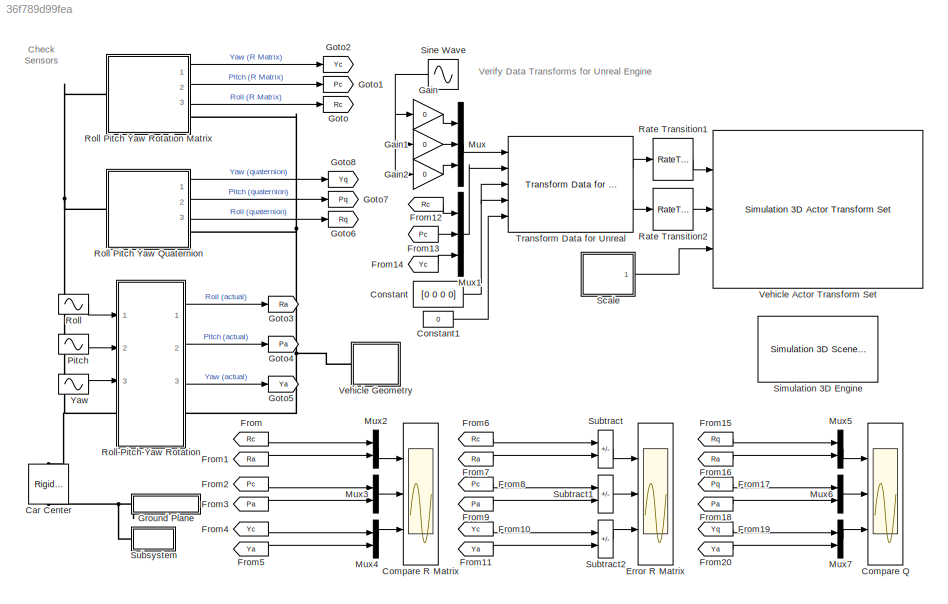
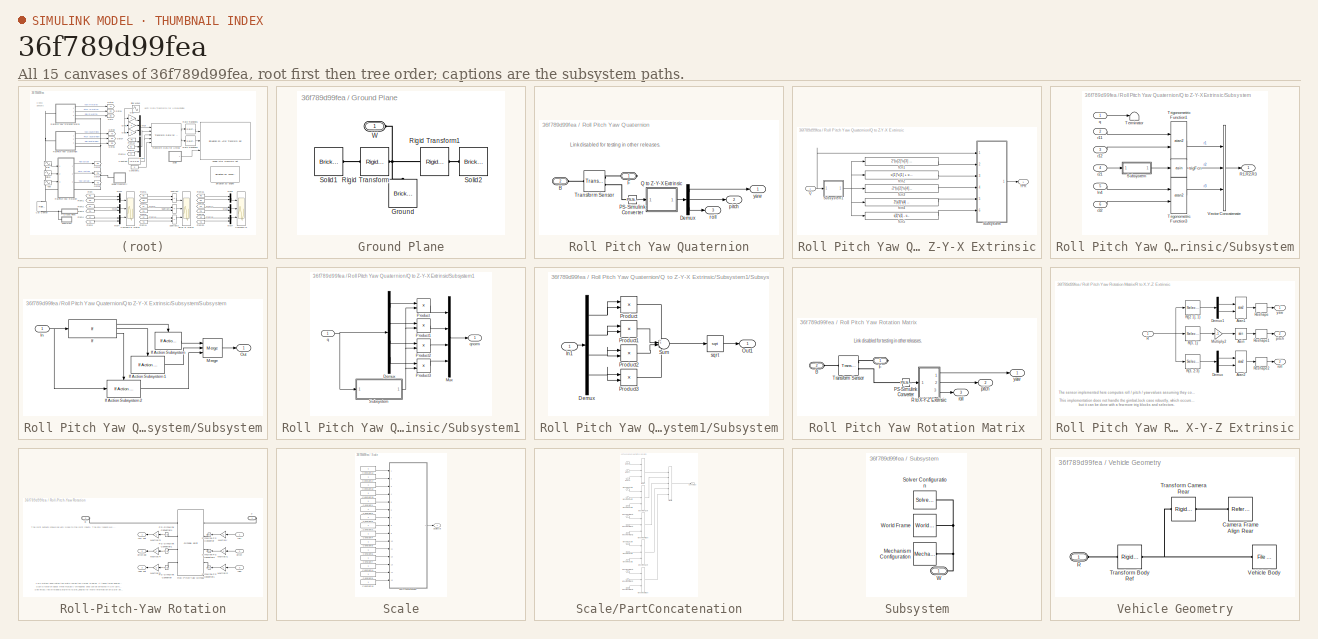
[diagram: thumbnail index - all 15 canvases of the model, root first then tree order]
MODEL slx_36f789d99fea
KIND model
CONFIG AbsTol = auto
CONFIG EnableMultiTasking = on
CONFIG FixedStep = auto
CONFIG MaxStep = auto
CONFIG MinStep = auto
CONFIG RelTol = 1e-3
CONFIG SampleTimeConstraint = Unconstrained
CONFIG SolverName = VariableStepAuto
CONFIG StartTime = 0.0
CONFIG StopTime = 20
BLOCK [Reference] Car Center  REF=sm_lib/Frames and
Transforms/Rigid
Transform
  NameLocation = right
  Ports = [0, 0, 0, 0, 0, 1, 1]
  SourceBlock = sm_lib/Frames and\nTransforms/Rigid\nTransform
  SourceProductName = Multibody
  SourceType = Rigid\nTransform
BLOCK [Scope] Compare Q
  Floating = off
  NumInputPorts = 3
  Ports = [3]
  ScopeSpecificationString = Simulink.scopes.TimeScopeBlockCfg('CurrentConfiguration', extmgr.ConfigurationSet(extmgr.Configuration('Core','General UI',true),extmgr.Configuration('Core','Source UI',true),extmgr.Configuration('Sources','WiredSimulink',true,'DataLoggingVariableName','ScopeData2'),extmgr.Configuration('Visuals','Time Domain',true,'SerializedDisplays',{struct('MinYLimReal','-3.27218','MaxYLimReal','3.27218','YLab...<+3367ch>
BLOCK [Scope] Compare R Matrix
  Floating = off
  NumInputPorts = 3
  Ports = [3]
  ScopeSpecificationString = Simulink.scopes.TimeScopeBlockCfg('CurrentConfiguration', extmgr.ConfigurationSet(extmgr.Configuration('Core','General UI',true),extmgr.Configuration('Core','Source UI',true),extmgr.Configuration('Sources','WiredSimulink',true,'DataLoggingVariableName','ScopeData1'),extmgr.Configuration('Visuals','Time Domain',true,'SerializedDisplays',{struct('MinYLimReal','-3.27218','MaxYLimReal','3.27218','YLab...<+3378ch>
BLOCK [Constant] Constant
  Value = [0 0 0 0]
BLOCK [Constant] Constant1
  Value = 0
BLOCK [Scope] Error R Matrix
  Floating = off
  NumInputPorts = 3
  Ports = [3]
  ScopeSpecificationString = Simulink.scopes.TimeScopeBlockCfg('CurrentConfiguration', extmgr.ConfigurationSet(extmgr.Configuration('Core','General UI',true),extmgr.Configuration('Core','Source UI',true),extmgr.Configuration('Sources','WiredSimulink',true,'DataLoggingVariableName','ScopeData1'),extmgr.Configuration('Visuals','Time Domain',true,'SerializedDisplays',{struct('MinYLimReal','-0.00000000000002','MaxYLimReal','0.000...<+2739ch>
BLOCK [From] From
  GotoTag = Rc
BLOCK [From] From1
  GotoTag = Ra
BLOCK [From] From10
  GotoTag = Yc
BLOCK [From] From11
  GotoTag = Ya
BLOCK [From] From12
  GotoTag = Rc
BLOCK [From] From13
  GotoTag = Pc
BLOCK [From] From14
  GotoTag = Yc
BLOCK [From] From15
  GotoTag = Rq
BLOCK [From] From16
  GotoTag = Ra
BLOCK [From] From17
  GotoTag = Pq
BLOCK [From] From18
  GotoTag = Pa
BLOCK [From] From19
  GotoTag = Yq
BLOCK [From] From2
  GotoTag = Pc
BLOCK [From] From20
  GotoTag = Ya
BLOCK [From] From3
  GotoTag = Pa
BLOCK [From] From4
  GotoTag = Yc
BLOCK [From] From5
  GotoTag = Ya
BLOCK [From] From6
  GotoTag = Rc
BLOCK [From] From7
  GotoTag = Ra
BLOCK [From] From8
  GotoTag = Pc
BLOCK [From] From9
  GotoTag = Pa
BLOCK [Gain] Gain
  Gain = 0
BLOCK [Gain] Gain1
  Gain = 0
BLOCK [Gain] Gain2
  Gain = 0
BLOCK [Goto] Goto
  GotoTag = Rc
BLOCK [Goto] Goto1
  GotoTag = Pc
BLOCK [Goto] Goto2
  GotoTag = Yc
BLOCK [Goto] Goto3
  GotoTag = Ra
BLOCK [Goto] Goto4
  GotoTag = Pa
BLOCK [Goto] Goto5
  GotoTag = Ya
BLOCK [Goto] Goto6
  GotoTag = Rq
BLOCK [Goto] Goto7
  GotoTag = Pq
BLOCK [Goto] Goto8
  GotoTag = Yq
BLOCK [SubSystem] Ground Plane
  Ports = [0, 0, 0, 0, 0, 1]
  RequestExecContextInheritance = off
BLOCK [Reference] Ground Plane/Ground  REF=sm_lib/Body Elements/Brick Solid
  NameLocation = left
  Ports = [0, 0, 0, 0, 0, 0, 1]
  SourceBlock = sm_lib/Body Elements/Brick Solid
  SourceProductBaseCode = MS
  SourceType = Brick Solid
BLOCK [Reference] Ground Plane/Rigid Transform  REF=sm_lib/Frames and
Transforms/Rigid
Transform
  Ports = [0, 0, 0, 0, 0, 1, 1]
  SourceBlock = sm_lib/Frames and\nTransforms/Rigid\nTransform
  SourceProductBaseCode = MS
  SourceType = Rigid\nTransform
BLOCK [Reference] Ground Plane/Rigid Transform1  REF=sm_lib/Frames and
Transforms/Rigid
Transform
  Ports = [0, 0, 0, 0, 0, 1, 1]
  SourceBlock = sm_lib/Frames and\nTransforms/Rigid\nTransform
  SourceProductBaseCode = MS
  SourceType = Rigid\nTransform
BLOCK [Reference] Ground Plane/Solid1  REF=sm_lib/Body Elements/Brick Solid
  NameLocation = top
  Ports = [0, 0, 0, 0, 0, 0, 1]
  SourceBlock = sm_lib/Body Elements/Brick Solid
  SourceProductBaseCode = MS
  SourceType = Brick Solid
BLOCK [Reference] Ground Plane/Solid2  REF=sm_lib/Body Elements/Brick Solid
  NameLocation = top
  Ports = [0, 0, 0, 0, 0, 0, 1]
  SourceBlock = sm_lib/Body Elements/Brick Solid
  SourceProductBaseCode = MS
  SourceType = Brick Solid
BLOCK [PMIOPort] Ground Plane/W
  Side = Left
BLOCK [Mux] Mux
  DisplayOption = bar
  Inputs = 3
  Ports = [3, 1]
BLOCK [Mux] Mux1
  DisplayOption = bar
  Inputs = 3
  Ports = [3, 1]
BLOCK [Mux] Mux2
  DisplayOption = bar
  Inputs = 2
  Ports = [2, 1]
BLOCK [Mux] Mux3
  DisplayOption = bar
  Inputs = 2
  Ports = [2, 1]
BLOCK [Mux] Mux4
  DisplayOption = bar
  Inputs = 2
  Ports = [2, 1]
BLOCK [Mux] Mux5
  DisplayOption = bar
  Inputs = 2
  Ports = [2, 1]
BLOCK [Mux] Mux6
  DisplayOption = bar
  Inputs = 2
  Ports = [2, 1]
BLOCK [Mux] Mux7
  DisplayOption = bar
  Inputs = 2
  Ports = [2, 1]
BLOCK [Sin] Pitch
  Amplitude = 80
  Frequency = 1.329
  Ports = [0, 1]
  SampleTime = 0
BLOCK [RateTransition] Rate Transition1
  Deterministic = off
  OutPortSampleTime = 0.03
BLOCK [RateTransition] Rate Transition2
  Deterministic = off
  OutPortSampleTime = 0.03
BLOCK [Sin] Roll
  Amplitude = 150
  Frequency = .991
  Ports = [0, 1]
  SampleTime = 0
BLOCK [SubSystem] Roll Pitch Yaw Quaternion
  Ports = [0, 3, 0, 0, 0, 1, 1]
  RequestExecContextInheritance = off
BLOCK [PMIOPort] Roll Pitch Yaw Quaternion/B
  Port = 2
  Side = Left
BLOCK [Demux] Roll Pitch Yaw Quaternion/Demux
  Outputs = 3
  Ports = [1, 3]
BLOCK [PMIOPort] Roll Pitch Yaw Quaternion/F
  Side = Right
BLOCK [Reference] Roll Pitch Yaw Quaternion/PS-Simulink Converter  REF=nesl_utility/PS-Simulink
Converter
  Ports = [0, 1, 0, 0, 0, 1]
  SourceBlock = nesl_utility/PS-Simulink\nConverter
  SourceProductBaseCode = SS,PW,VE
  SourceType = PS-Simulink\nConverter
BLOCK [SubSystem] Roll Pitch Yaw Quaternion/Q to Z-Y-X Extrinsic
  AncestorBlock = sm_car_lib/Utilities/Q to Z-Y-X\nExtrinsic
  Ports = [1, 1]
  RequestExecContextInheritance = off
BLOCK [Inport] Roll Pitch Yaw Quaternion/Q to Z-Y-X Extrinsic/Q
BLOCK [SubSystem] Roll Pitch Yaw Quaternion/Q to Z-Y-X Extrinsic/Subsystem
  Ports = [6, 1]
  RequestExecContextInheritance = off
BLOCK [Inport] Roll Pitch Yaw Quaternion/Q to Z-Y-X Extrinsic/Subsystem/In4
  Port = 5
BLOCK [Outport] Roll Pitch Yaw Quaternion/Q to Z-Y-X Extrinsic/Subsystem/R1,R2,R3
  VectorParamsAs1DForOutWhenUnconnected = off
BLOCK [SubSystem] Roll Pitch Yaw Quaternion/Q to Z-Y-X Extrinsic/Subsystem/Subsystem
  Ports = [1, 1]
  RequestExecContextInheritance = off
BLOCK [If] Roll Pitch Yaw Quaternion/Q to Z-Y-X Extrinsic/Subsystem/Subsystem/If
  ElseIfExpressions = u1 < -1
  IfExpression = u1 > 1
  Ports = [1, 3]
BLOCK [Reference] Roll Pitch Yaw Quaternion/Q to Z-Y-X Extrinsic/Subsystem/Subsystem/If Action Subsystem  REF=sharedtransformsys/Protect asincos input/If Action
Subsystem
  Ports = [0, 1, 0, 0, 0, 0, 0, 1]
  SourceBlock = sharedtransformsys/Protect asincos input/If Action\nSubsystem
  SourceProductBaseCode = AE,PW,DR,MT,VE
  SourceType = SubSystem
BLOCK [Reference] Roll Pitch Yaw Quaternion/Q to Z-Y-X Extrinsic/Subsystem/Subsystem/If Action Subsystem1  REF=sharedtransformsys/Protect asincos input/If Action
Subsystem1
  Ports = [0, 1, 0, 0, 0, 0, 0, 1]
  SourceBlock = sharedtransformsys/Protect asincos input/If Action\nSubsystem1
  SourceProductBaseCode = AE,PW,DR,MT,VE
  SourceType = SubSystem
BLOCK [Reference] Roll Pitch Yaw Quaternion/Q to Z-Y-X Extrinsic/Subsystem/Subsystem/If Action Subsystem2  REF=sharedtransformsys/Protect asincos input/If Action
Subsystem2
  Ports = [1, 1, 0, 0, 0, 0, 0, 1]
  SourceBlock = sharedtransformsys/Protect asincos input/If Action\nSubsystem2
  SourceProductBaseCode = AE,PW,DR,MT,VE
  SourceType = SubSystem
BLOCK [Inport] Roll Pitch Yaw Quaternion/Q to Z-Y-X Extrinsic/Subsystem/Subsystem/In
BLOCK [Merge] Roll Pitch Yaw Quaternion/Q to Z-Y-X Extrinsic/Subsystem/Subsystem/Merge
  Inputs = 3
  Ports = [3, 1]
BLOCK [Outport] Roll Pitch Yaw Quaternion/Q to Z-Y-X Extrinsic/Subsystem/Subsystem/Out
  VectorParamsAs1DForOutWhenUnconnected = off
BLOCK [Terminator] Roll Pitch Yaw Quaternion/Q to Z-Y-X Extrinsic/Subsystem/Terminator
BLOCK [Trigonometry] Roll Pitch Yaw Quaternion/Q to Z-Y-X Extrinsic/Subsystem/Trigonometric Function1
  Operator = atan2
  Ports = [2, 1]
BLOCK [Trigonometry] Roll Pitch Yaw Quaternion/Q to Z-Y-X Extrinsic/Subsystem/Trigonometric Function3
  Operator = atan2
  Ports = [2, 1]
BLOCK [Concatenate] Roll Pitch Yaw Quaternion/Q to Z-Y-X Extrinsic/Subsystem/Vector Concatenate
  NumInputs = 3
  Ports = [3, 1]
BLOCK [Inport] Roll Pitch Yaw Quaternion/Q to Z-Y-X Extrinsic/Subsystem/q
BLOCK [Inport] Roll Pitch Yaw Quaternion/Q to Z-Y-X Extrinsic/Subsystem/r11
  Port = 2
BLOCK [Inport] Roll Pitch Yaw Quaternion/Q to Z-Y-X Extrinsic/Subsystem/r12
  Port = 3
BLOCK [Inport] Roll Pitch Yaw Quaternion/Q to Z-Y-X Extrinsic/Subsystem/r21
  Port = 4
BLOCK [Inport] Roll Pitch Yaw Quaternion/Q to Z-Y-X Extrinsic/Subsystem/r32
  Port = 6
BLOCK [Trigonometry] Roll Pitch Yaw Quaternion/Q to Z-Y-X Extrinsic/Subsystem/trigFcn
  Operator = asin
  Ports = [1, 1]
BLOCK [SubSystem] Roll Pitch Yaw Quaternion/Q to Z-Y-X Extrinsic/Subsystem1
  Ports = [1, 1]
  RequestExecContextInheritance = off
BLOCK [Demux] Roll Pitch Yaw Quaternion/Q to Z-Y-X Extrinsic/Subsystem1/Demux
  Ports = [1, 4]
BLOCK [Mux] Roll Pitch Yaw Quaternion/Q to Z-Y-X Extrinsic/Subsystem1/Mux
  DisplayOption = bar
  Ports = [4, 1]
BLOCK [Product] Roll Pitch Yaw Quaternion/Q to Z-Y-X Extrinsic/Subsystem1/Product
  Inputs = */
  Ports = [2, 1]
BLOCK [Product] Roll Pitch Yaw Quaternion/Q to Z-Y-X Extrinsic/Subsystem1/Product1
  Inputs = */
  Ports = [2, 1]
BLOCK [Product] Roll Pitch Yaw Quaternion/Q to Z-Y-X Extrinsic/Subsystem1/Product2
  Inputs = */
  Ports = [2, 1]
BLOCK [Product] Roll Pitch Yaw Quaternion/Q to Z-Y-X Extrinsic/Subsystem1/Product3
  Inputs = */
  Ports = [2, 1]
BLOCK [SubSystem] Roll Pitch Yaw Quaternion/Q to Z-Y-X Extrinsic/Subsystem1/Subsystem
  Ports = [1, 1]
  RequestExecContextInheritance = off
BLOCK [Demux] Roll Pitch Yaw Quaternion/Q to Z-Y-X Extrinsic/Subsystem1/Subsystem/Demux
  Ports = [1, 4]
BLOCK [Inport] Roll Pitch Yaw Quaternion/Q to Z-Y-X Extrinsic/Subsystem1/Subsystem/In1
BLOCK [Outport] Roll Pitch Yaw Quaternion/Q to Z-Y-X Extrinsic/Subsystem1/Subsystem/Out1
  VectorParamsAs1DForOutWhenUnconnected = off
BLOCK [Product] Roll Pitch Yaw Quaternion/Q to Z-Y-X Extrinsic/Subsystem1/Subsystem/Product
  Ports = [2, 1]
BLOCK [Product] Roll Pitch Yaw Quaternion/Q to Z-Y-X Extrinsic/Subsystem1/Subsystem/Product1
  Ports = [2, 1]
BLOCK [Product] Roll Pitch Yaw Quaternion/Q to Z-Y-X Extrinsic/Subsystem1/Subsystem/Product2
  Ports = [2, 1]
BLOCK [Product] Roll Pitch Yaw Quaternion/Q to Z-Y-X Extrinsic/Subsystem1/Subsystem/Product3
  Ports = [2, 1]
BLOCK [Sum] Roll Pitch Yaw Quaternion/Q to Z-Y-X Extrinsic/Subsystem1/Subsystem/Sum
  Inputs = 4
  Ports = [4, 1]
BLOCK [Sqrt] Roll Pitch Yaw Quaternion/Q to Z-Y-X Extrinsic/Subsystem1/Subsystem/sqrt
  AlgorithmType = Newton-Raphson
BLOCK [Inport] Roll Pitch Yaw Quaternion/Q to Z-Y-X Extrinsic/Subsystem1/q
  Unit = 1
BLOCK [Outport] Roll Pitch Yaw Quaternion/Q to Z-Y-X Extrinsic/Subsystem1/qnorm
  Unit = 1
  VectorParamsAs1DForOutWhenUnconnected = off
BLOCK [Outport] Roll Pitch Yaw Quaternion/Q to Z-Y-X Extrinsic/YPR
  VectorParamsAs1DForOutWhenUnconnected = off
BLOCK [Fcn] Roll Pitch Yaw Quaternion/Q to Z-Y-X Extrinsic/fcn1
  Expr = 2*(u[2]*u[3] + u[1]*u[4])
BLOCK [Fcn] Roll Pitch Yaw Quaternion/Q to Z-Y-X Extrinsic/fcn2
  Expr = u[1]*u[1] + u[2]*u[2] - u[3]*u[3] - u[4]*u[4]
BLOCK [Fcn] Roll Pitch Yaw Quaternion/Q to Z-Y-X Extrinsic/fcn3
  Expr = -2*(u[2]*u[4] - u[1]*u[3])
BLOCK [Fcn] Roll Pitch Yaw Quaternion/Q to Z-Y-X Extrinsic/fcn4
  Expr = 2*(u[3]*u[4] + u[1]*u[2])
BLOCK [Fcn] Roll Pitch Yaw Quaternion/Q to Z-Y-X Extrinsic/fcn5
  Expr = u[1]*u[1] - u[2]*u[2] - u[3]*u[3] + u[4]*u[4]
BLOCK [Reference] Roll Pitch Yaw Quaternion/Transform Sensor  REF=sm_lib/Frames and
Transforms/Transform
Sensor
  Ports = [0, 0, 0, 0, 0, 1, 2]
  SourceBlock = sm_lib/Frames and\nTransforms/Transform\nSensor
  SourceProductBaseCode = MS
  SourceType = Transform\nSensor
BLOCK [Outport] Roll Pitch Yaw Quaternion/pitch
  Port = 2
  VectorParamsAs1DForOutWhenUnconnected = off
BLOCK [Outport] Roll Pitch Yaw Quaternion/roll
  Port = 3
  VectorParamsAs1DForOutWhenUnconnected = off
BLOCK [Outport] Roll Pitch Yaw Quaternion/yaw
  VectorParamsAs1DForOutWhenUnconnected = off
BLOCK [SubSystem] Roll Pitch Yaw Rotation Matrix
  Ports = [0, 3, 0, 0, 0, 1, 1]
  RequestExecContextInheritance = off
BLOCK [PMIOPort] Roll Pitch Yaw Rotation Matrix/B
  Port = 2
  Side = Left
BLOCK [PMIOPort] Roll Pitch Yaw Rotation Matrix/F
  Side = Right
BLOCK [Reference] Roll Pitch Yaw Rotation Matrix/PS-Simulink Converter  REF=nesl_utility/PS-Simulink
Converter
  Ports = [0, 1, 0, 0, 0, 1]
  SourceBlock = nesl_utility/PS-Simulink\nConverter
  SourceProductBaseCode = SS,PW,VE
  SourceType = PS-Simulink\nConverter
BLOCK [SubSystem] Roll Pitch Yaw Rotation Matrix/R to X-Y-Z Extrinsic
  AncestorBlock = sm_car_lib/Body/Body to World/R to X-Y-Z\nExtrinsic
  Ports = [1, 3]
  RequestExecContextInheritance = off
BLOCK [Trigonometry] Roll Pitch Yaw Rotation Matrix/R to X-Y-Z Extrinsic/Asin
  Operator = asin
  Ports = [1, 1]
BLOCK [Trigonometry] Roll Pitch Yaw Rotation Matrix/R to X-Y-Z Extrinsic/Atan1
  Operator = atan2
  Ports = [2, 1]
BLOCK [Trigonometry] Roll Pitch Yaw Rotation Matrix/R to X-Y-Z Extrinsic/Atan2
  Operator = atan2
  Ports = [2, 1]
BLOCK [Demux] Roll Pitch Yaw Rotation Matrix/R to X-Y-Z Extrinsic/Demux
  Outputs = 2
  Ports = [1, 2]
BLOCK [Demux] Roll Pitch Yaw Rotation Matrix/R to X-Y-Z Extrinsic/Demux1
  Outputs = 2
  Ports = [1, 2]
BLOCK [Gain] Roll Pitch Yaw Rotation Matrix/R to X-Y-Z Extrinsic/Multiply2
  Gain = -1
BLOCK [Inport] Roll Pitch Yaw Rotation Matrix/R to X-Y-Z Extrinsic/R
BLOCK [Selector] Roll Pitch Yaw Rotation Matrix/R to X-Y-Z Extrinsic/R(3, 1)
  IndexOptions = Index vector (dialog),Index vector (dialog)
  Indices = 3,1
  InputPortWidth = 3
  NumberOfDimensions = 2
  OutputSizes = 1,1
  Ports = [1, 1]
BLOCK [Selector] Roll Pitch Yaw Rotation Matrix/R to X-Y-Z Extrinsic/R(3, 2:3)
  IndexOptions = Index vector (dialog),Index vector (dialog)
  Indices = 3,[2 3]
  InputPortWidth = 3
  NumberOfDimensions = 2
  OutputSizes = 1,1
  Ports = [1, 1]
BLOCK [Selector] Roll Pitch Yaw Rotation Matrix/R to X-Y-Z Extrinsic/R([2 1], 1)
  IndexOptions = Index vector (dialog),Index vector (dialog)
  Indices = [2 1],1
  InputPortWidth = 3
  NumberOfDimensions = 2
  OutputSizes = 1,1
  Ports = [1, 1]
BLOCK [Reshape] Roll Pitch Yaw Rotation Matrix/R to X-Y-Z Extrinsic/Reshape
  Ports = [1, 1]
BLOCK [Reshape] Roll Pitch Yaw Rotation Matrix/R to X-Y-Z Extrinsic/Reshape1
  Ports = [1, 1]
BLOCK [Reshape] Roll Pitch Yaw Rotation Matrix/R to X-Y-Z Extrinsic/Reshape2
  Ports = [1, 1]
BLOCK [Outport] Roll Pitch Yaw Rotation Matrix/R to X-Y-Z Extrinsic/pitch
  Port = 2
  VectorParamsAs1DForOutWhenUnconnected = off
BLOCK [Outport] Roll Pitch Yaw Rotation Matrix/R to X-Y-Z Extrinsic/roll
  Port = 3
  VectorParamsAs1DForOutWhenUnconnected = off
BLOCK [Outport] Roll Pitch Yaw Rotation Matrix/R to X-Y-Z Extrinsic/yaw
  VectorParamsAs1DForOutWhenUnconnected = off
BLOCK [Reference] Roll Pitch Yaw Rotation Matrix/Transform Sensor  REF=sm_lib/Frames and
Transforms/Transform
Sensor
  Ports = [0, 0, 0, 0, 0, 1, 2]
  SourceBlock = sm_lib/Frames and\nTransforms/Transform\nSensor
  SourceProductBaseCode = MS
  SourceType = Transform\nSensor
BLOCK [Outport] Roll Pitch Yaw Rotation Matrix/pitch
  Port = 2
  VectorParamsAs1DForOutWhenUnconnected = off
BLOCK [Outport] Roll Pitch Yaw Rotation Matrix/roll
  Port = 3
  VectorParamsAs1DForOutWhenUnconnected = off
BLOCK [Outport] Roll Pitch Yaw Rotation Matrix/yaw
  VectorParamsAs1DForOutWhenUnconnected = off
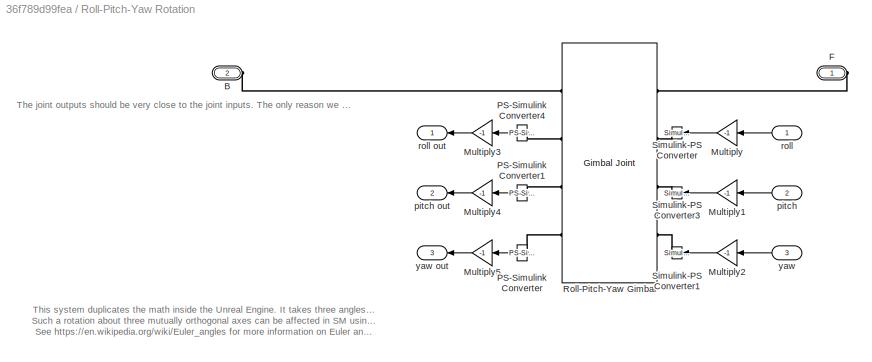
BLOCK [SubSystem] Roll-Pitch-Yaw Rotation
  Ports = [3, 3, 0, 0, 0, 1, 1]
  RequestExecContextInheritance = off
BLOCK [PMIOPort] Roll-Pitch-Yaw Rotation/B
  Port = 2
  Side = Left
BLOCK [PMIOPort] Roll-Pitch-Yaw Rotation/F
  Side = Right
BLOCK [Gain] Roll-Pitch-Yaw Rotation/Multiply
  Gain = -1
BLOCK [Gain] Roll-Pitch-Yaw Rotation/Multiply1
  Gain = -1
BLOCK [Gain] Roll-Pitch-Yaw Rotation/Multiply2
  Gain = -1
BLOCK [Gain] Roll-Pitch-Yaw Rotation/Multiply3
  Gain = -1
BLOCK [Gain] Roll-Pitch-Yaw Rotation/Multiply4
  Gain = -1
BLOCK [Gain] Roll-Pitch-Yaw Rotation/Multiply5
  Gain = -1
BLOCK [Reference] Roll-Pitch-Yaw Rotation/PS-Simulink Converter  REF=nesl_utility/PS-Simulink
Converter
  Ports = [0, 1, 0, 0, 0, 1]
  SourceBlock = nesl_utility/PS-Simulink\nConverter
  SourceProductName = Utilities
  SourceType = PS-Simulink\nConverter
BLOCK [Reference] Roll-Pitch-Yaw Rotation/PS-Simulink Converter1  REF=nesl_utility/PS-Simulink
Converter
  Ports = [0, 1, 0, 0, 0, 1]
  SourceBlock = nesl_utility/PS-Simulink\nConverter
  SourceProductName = Utilities
  SourceType = PS-Simulink\nConverter
BLOCK [Reference] Roll-Pitch-Yaw Rotation/PS-Simulink Converter4  REF=nesl_utility/PS-Simulink
Converter
  Ports = [0, 1, 0, 0, 0, 1]
  SourceBlock = nesl_utility/PS-Simulink\nConverter
  SourceProductName = Utilities
  SourceType = PS-Simulink\nConverter
BLOCK [Reference] Roll-Pitch-Yaw Rotation/Roll-Pitch-Yaw Gimbal  REF=sm_lib/Joints/Gimbal Joint
  Ports = [0, 0, 0, 0, 0, 4, 4]
  SourceBlock = sm_lib/Joints/Gimbal Joint
  SourceProductName = Multibody
  SourceType = Gimbal Joint
BLOCK [Reference] Roll-Pitch-Yaw Rotation/Simulink-PS Converter  REF=nesl_utility/Simulink-PS
Converter
  Ports = [1, 0, 0, 0, 0, 0, 1]
  SourceBlock = nesl_utility/Simulink-PS\nConverter
  SourceProductName = Utilities
  SourceType = Simulink-PS\nConverter
BLOCK [Reference] Roll-Pitch-Yaw Rotation/Simulink-PS Converter1  REF=nesl_utility/Simulink-PS
Converter
  Ports = [1, 0, 0, 0, 0, 0, 1]
  SourceBlock = nesl_utility/Simulink-PS\nConverter
  SourceProductName = Utilities
  SourceType = Simulink-PS\nConverter
BLOCK [Reference] Roll-Pitch-Yaw Rotation/Simulink-PS Converter3  REF=nesl_utility/Simulink-PS
Converter
  Ports = [1, 0, 0, 0, 0, 0, 1]
  SourceBlock = nesl_utility/Simulink-PS\nConverter
  SourceProductName = Utilities
  SourceType = Simulink-PS\nConverter
BLOCK [Inport] Roll-Pitch-Yaw Rotation/pitch
  Port = 2
BLOCK [Outport] Roll-Pitch-Yaw Rotation/pitch out
  Port = 2
BLOCK [Inport] Roll-Pitch-Yaw Rotation/roll
BLOCK [Outport] Roll-Pitch-Yaw Rotation/roll out
BLOCK [Inport] Roll-Pitch-Yaw Rotation/yaw
  Port = 3
BLOCK [Outport] Roll-Pitch-Yaw Rotation/yaw out
  Port = 3
BLOCK [SubSystem] Scale
  Ports = [0, 1]
  RequestExecContextInheritance = off
BLOCK [Constant] Scale/Constant1
  OutDataTypeStr = single
BLOCK [Constant] Scale/Constant10
  OutDataTypeStr = single
BLOCK [Constant] Scale/Constant11
  OutDataTypeStr = single
BLOCK [Constant] Scale/Constant12
  OutDataTypeStr = single
BLOCK [Constant] Scale/Constant17
  OutDataTypeStr = single
BLOCK [Constant] Scale/Constant2
  OutDataTypeStr = single
BLOCK [Constant] Scale/Constant3
  OutDataTypeStr = single
BLOCK [Constant] Scale/Constant32
  OutDataTypeStr = single
BLOCK [Constant] Scale/Constant33
  OutDataTypeStr = single
BLOCK [Constant] Scale/Constant4
  OutDataTypeStr = single
BLOCK [Constant] Scale/Constant5
  OutDataTypeStr = single
BLOCK [Constant] Scale/Constant6
  OutDataTypeStr = single
BLOCK [Constant] Scale/Constant7
  OutDataTypeStr = single
BLOCK [Constant] Scale/Constant8
  OutDataTypeStr = single
BLOCK [Constant] Scale/Constant9
  OutDataTypeStr = single
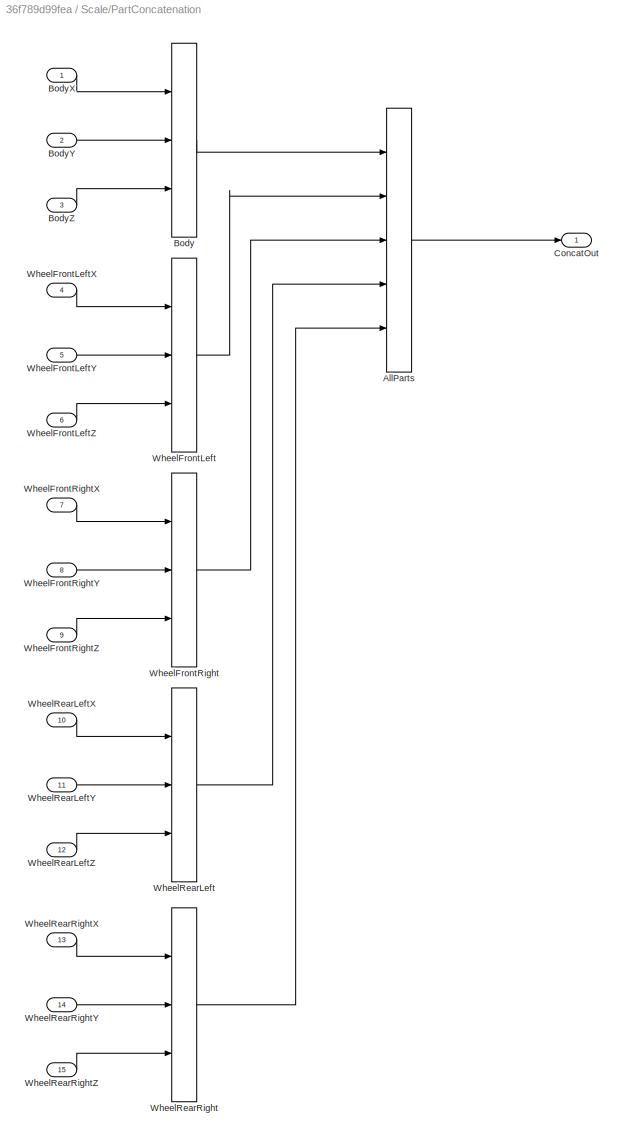
BLOCK [SubSystem] Scale/PartConcatenation
  Ports = [15, 1]
  RequestExecContextInheritance = off
BLOCK [Concatenate] Scale/PartConcatenation/AllParts
  Mode = Multidimensional array
  NumInputs = 5
  Ports = [5, 1]
BLOCK [Concatenate] Scale/PartConcatenation/Body
  ConcatenateDimension = 2
  Mode = Multidimensional array
  NumInputs = 3
  Ports = [3, 1]
BLOCK [Inport] Scale/PartConcatenation/BodyX
BLOCK [Inport] Scale/PartConcatenation/BodyY
  Port = 2
BLOCK [Inport] Scale/PartConcatenation/BodyZ
  Port = 3
BLOCK [Outport] Scale/PartConcatenation/ConcatOut
  VectorParamsAs1DForOutWhenUnconnected = off
BLOCK [Concatenate] Scale/PartConcatenation/WheelFrontLeft
  ConcatenateDimension = 2
  Mode = Multidimensional array
  NumInputs = 3
  Ports = [3, 1]
BLOCK [Inport] Scale/PartConcatenation/WheelFrontLeftX
  Port = 4
BLOCK [Inport] Scale/PartConcatenation/WheelFrontLeftY
  Port = 5
BLOCK [Inport] Scale/PartConcatenation/WheelFrontLeftZ
  Port = 6
BLOCK [Concatenate] Scale/PartConcatenation/WheelFrontRight
  ConcatenateDimension = 2
  Mode = Multidimensional array
  NumInputs = 3
  Ports = [3, 1]
BLOCK [Inport] Scale/PartConcatenation/WheelFrontRightX
  Port = 7
BLOCK [Inport] Scale/PartConcatenation/WheelFrontRightY
  Port = 8
BLOCK [Inport] Scale/PartConcatenation/WheelFrontRightZ
  Port = 9
BLOCK [Concatenate] Scale/PartConcatenation/WheelRearLeft
  ConcatenateDimension = 2
  Mode = Multidimensional array
  NumInputs = 3
  Ports = [3, 1]
BLOCK [Inport] Scale/PartConcatenation/WheelRearLeftX
  Port = 10
BLOCK [Inport] Scale/PartConcatenation/WheelRearLeftY
  Port = 11
BLOCK [Inport] Scale/PartConcatenation/WheelRearLeftZ
  Port = 12
BLOCK [Concatenate] Scale/PartConcatenation/WheelRearRight
  ConcatenateDimension = 2
  Mode = Multidimensional array
  NumInputs = 3
  Ports = [3, 1]
BLOCK [Inport] Scale/PartConcatenation/WheelRearRightX
  Port = 13
BLOCK [Inport] Scale/PartConcatenation/WheelRearRightY
  Port = 14
BLOCK [Inport] Scale/PartConcatenation/WheelRearRightZ
  Port = 15
BLOCK [Outport] Scale/ScaleOut
  VectorParamsAs1DForOutWhenUnconnected = off
BLOCK [Reference] Simulation 3D Engine  REF=sim3dlib/Simulation 3D Scene Configuration
  AttributesFormatString = Priority: %<Priority>
  Commented = on
  Ports = []
  Priority = 1
  SourceBlock = sim3dlib/Simulation 3D Scene Configuration
  SourceProductBaseCode = VE,AE,DR,UV,VE
  SourceType = Simulation 3D Scene Configuration
BLOCK [Sin] Sine Wave
  Ports = [0, 1]
  SampleTime = 0
BLOCK [SubSystem] Subsystem
  Ports = [0, 0, 0, 0, 0, 1]
  RequestExecContextInheritance = off
BLOCK [Reference] Subsystem/Mechanism Configuration  REF=sm_lib/Utilities/Mechanism
Configuration
  Ports = [0, 0, 0, 0, 0, 0, 1]
  SourceBlock = sm_lib/Utilities/Mechanism\nConfiguration
  SourceProductName = Multibody
  SourceType = Mechanism\nConfiguration
BLOCK [Reference] Subsystem/Solver Configuration  REF=nesl_utility/Solver
Configuration
  Ports = [0, 0, 0, 0, 0, 0, 1]
  SourceBlock = nesl_utility/Solver\nConfiguration
  SourceProductName = Utilities
  SourceType = Solver\nConfiguration
BLOCK [PMIOPort] Subsystem/W
  Side = Left
BLOCK [Reference] Subsystem/World Frame  REF=sm_lib/Frames and
Transforms/World Frame
  Ports = [0, 0, 0, 0, 0, 0, 1]
  SourceBlock = sm_lib/Frames and\nTransforms/World Frame
  SourceProductName = Multibody
  SourceType = World Frame
BLOCK [Sum] Subtract
  IconShape = rectangular
  Inputs = +-
  Ports = [2, 1]
BLOCK [Sum] Subtract1
  IconShape = rectangular
  Inputs = +-
  Ports = [2, 1]
BLOCK [Sum] Subtract2
  IconShape = rectangular
  Inputs = +-
  Ports = [2, 1]
BLOCK [Reference] Transform Data for Unreal  REF=Vehicle_Visualization/Transform Data
for Unreal
  Ports = [5, 2]
  SourceBlock = Vehicle_Visualization/Transform Data\nfor Unreal
  SourceType = SubSystem
BLOCK [Reference] Vehicle Actor Transform Set  REF=sim3dlib/Simulation 3D Actor Transform Set
  Commented = on
  Ports = [3]
  SourceBlock = sim3dlib/Simulation 3D Actor Transform Set
  SourceProductBaseCode = VE,AE,DR,UV,VE
  SourceType = Simulation 3D Actor Transform Set
BLOCK [SubSystem] Vehicle Geometry
  Ports = [0, 0, 0, 0, 0, 1]
  RequestExecContextInheritance = off
BLOCK [Reference] Vehicle Geometry/Camera Frame Align Rear  REF=sm_lib/Frames and
Transforms/Reference
Frame
  Ports = [0, 0, 0, 0, 0, 0, 1]
  SourceBlock = sm_lib/Frames and\nTransforms/Reference\nFrame
  SourceProductBaseCode = MS
  SourceType = Reference\nFrame
BLOCK [PMIOPort] Vehicle Geometry/R
  Side = Left
BLOCK [Reference] Vehicle Geometry/Transform Body Ref  REF=sm_lib/Frames and
Transforms/Rigid
Transform
  Ports = [0, 0, 0, 0, 0, 1, 1]
  SourceBlock = sm_lib/Frames and\nTransforms/Rigid\nTransform
  SourceProductBaseCode = MS
  SourceType = Rigid\nTransform
BLOCK [Reference] Vehicle Geometry/Transform Camera Rear  REF=sm_lib/Frames and
Transforms/Rigid
Transform
  Ports = [0, 0, 0, 0, 0, 1, 1]
  SourceBlock = sm_lib/Frames and\nTransforms/Rigid\nTransform
  SourceProductBaseCode = MS
  SourceType = Rigid\nTransform
BLOCK [Reference] Vehicle Geometry/Vehicle Body  REF=sm_lib/Body Elements/File Solid
  Ports = [0, 0, 0, 0, 0, 0, 1]
  SourceBlock = sm_lib/Body Elements/File Solid
  SourceProductBaseCode = MS
  SourceType = File Solid
BLOCK [Sin] Yaw
  Amplitude = 130
  Frequency = .543
  Ports = [0, 1]
  SampleTime = 0
ANNOTATION (root): Verify Data Transforms for Unreal Engine
ANNOTATION (root): Check Sensors
ANNOTATION Roll Pitch Yaw Quaternion: Link disabled for testing in other releases.
ANNOTATION Roll Pitch Yaw Rotation Matrix: Link disabled for testing in other releases.
ANNOTATION Roll Pitch Yaw Rotation Matrix/R to X-Y-Z Extrinsic: The sensor implemented here computes roll / pitch / yaw values assuming they correpsond to X, Y, and Z rotations, applied in that order and using *extrinsic* rotations. That is, the rotations are applied about the fixed (non-rotated) axes of the base frame. There are many other possible conventions, but the computations of angles has the same basic structure for any of them. The only differences w...<+349ch>
ANNOTATION Roll-Pitch-Yaw Rotation: This system duplicates the math inside the Unreal Engine. It takes three angles -- roll, pitch, and yaw -- and uses them to set the orientation of the car. From experimentation, we have determined that roll, pitch, and yaw are applied in that order, and the rotation are *extrinsic*, i.e. they are about the fixed (non-rotated frame). Such a rotation about three mutually orthogonal axes can be affec...<+648ch>
ANNOTATION Roll-Pitch-Yaw Rotation: The joint outputs should be very close to the joint inputs. The only reason we sense them at all is to remove the effects of the SL->PS filtering that it applied to obtain derivatives. The sensed outputs reflect the true values the joint block is seeing after the filtering is applied. If we had instead compared the computed roll/pitch/yaw to the roll/pitch/yaw values being fed into this block, the...<+59ch>
LINE Constant1:1 -> Transform Data for Unreal:5
NET Constant:1 -> Transform Data for Unreal:3, Transform Data for Unreal:4
LINE From10:1 -> Subtract2:1
LINE From11:1 -> Subtract2:2
LINE From12:1 -> Mux1:1
LINE From13:1 -> Mux1:2
LINE From14:1 -> Mux1:3
LINE From15:1 -> Mux5:1
LINE From16:1 -> Mux5:2
LINE From17:1 -> Mux6:1
LINE From18:1 -> Mux6:2
LINE From19:1 -> Mux7:1
LINE From1:1 -> Mux2:2
LINE From20:1 -> Mux7:2
LINE From2:1 -> Mux3:1
LINE From3:1 -> Mux3:2
LINE From4:1 -> Mux4:1
LINE From5:1 -> Mux4:2
LINE From6:1 -> Subtract:1
LINE From7:1 -> Subtract:2
LINE From8:1 -> Subtract1:1
LINE From9:1 -> Subtract1:2
LINE From:1 -> Mux2:1
LINE Gain1:1 -> Mux:2
LINE Gain2:1 -> Mux:3
LINE Gain:1 -> Mux:1
LINE Mux1:1 -> Transform Data for Unreal:2
LINE Mux2:1 -> Compare R Matrix:1
LINE Mux3:1 -> Compare R Matrix:2
LINE Mux4:1 -> Compare R Matrix:3
LINE Mux5:1 -> Compare Q:1
LINE Mux6:1 -> Compare Q:2
LINE Mux7:1 -> Compare Q:3
LINE Mux:1 -> Transform Data for Unreal:1
LINE Pitch:1 -> Roll-Pitch-Yaw Rotation:2
LINE Rate Transition1:1 -> Vehicle Actor Transform Set:1
LINE Rate Transition2:1 -> Vehicle Actor Transform Set:2
LINE Roll Pitch Yaw Quaternion/Demux:1 -> Roll Pitch Yaw Quaternion/yaw:1
LINE Roll Pitch Yaw Quaternion/Demux:2 -> Roll Pitch Yaw Quaternion/pitch:1
LINE Roll Pitch Yaw Quaternion/Demux:3 -> Roll Pitch Yaw Quaternion/roll:1
LINE Roll Pitch Yaw Quaternion/PS-Simulink Converter:1 -> Roll Pitch Yaw Quaternion/Q to Z-Y-X Extrinsic:1
LINE Roll Pitch Yaw Quaternion/Q to Z-Y-X Extrinsic:1 -> Roll Pitch Yaw Quaternion/Demux:1
LINE Roll Pitch Yaw Quaternion:1 -> Goto8:1
LINE Roll Pitch Yaw Quaternion:2 -> Goto7:1
LINE Roll Pitch Yaw Quaternion:3 -> Goto6:1
LINE Roll Pitch Yaw Rotation Matrix/PS-Simulink Converter:1 -> Roll Pitch Yaw Rotation Matrix/R to X-Y-Z Extrinsic:1
LINE Roll Pitch Yaw Rotation Matrix/R to X-Y-Z Extrinsic:1 -> Roll Pitch Yaw Rotation Matrix/yaw:1
LINE Roll Pitch Yaw Rotation Matrix/R to X-Y-Z Extrinsic:2 -> Roll Pitch Yaw Rotation Matrix/pitch:1
LINE Roll Pitch Yaw Rotation Matrix/R to X-Y-Z Extrinsic:3 -> Roll Pitch Yaw Rotation Matrix/roll:1
LINE Roll Pitch Yaw Rotation Matrix:1 -> Goto2:1
LINE Roll Pitch Yaw Rotation Matrix:2 -> Goto1:1
LINE Roll Pitch Yaw Rotation Matrix:3 -> Goto:1
LINE Roll-Pitch-Yaw Rotation/Multiply1:1 -> Roll-Pitch-Yaw Rotation/Simulink-PS Converter3:1
LINE Roll-Pitch-Yaw Rotation/Multiply2:1 -> Roll-Pitch-Yaw Rotation/Simulink-PS Converter1:1
LINE Roll-Pitch-Yaw Rotation/Multiply3:1 -> Roll-Pitch-Yaw Rotation/roll out:1
LINE Roll-Pitch-Yaw Rotation/Multiply4:1 -> Roll-Pitch-Yaw Rotation/pitch out:1
LINE Roll-Pitch-Yaw Rotation/Multiply5:1 -> Roll-Pitch-Yaw Rotation/yaw out:1
LINE Roll-Pitch-Yaw Rotation/Multiply:1 -> Roll-Pitch-Yaw Rotation/Simulink-PS Converter:1
LINE Roll-Pitch-Yaw Rotation/PS-Simulink Converter1:1 -> Roll-Pitch-Yaw Rotation/Multiply4:1
LINE Roll-Pitch-Yaw Rotation/PS-Simulink Converter4:1 -> Roll-Pitch-Yaw Rotation/Multiply3:1
LINE Roll-Pitch-Yaw Rotation/PS-Simulink Converter:1 -> Roll-Pitch-Yaw Rotation/Multiply5:1
LINE Roll-Pitch-Yaw Rotation/pitch:1 -> Roll-Pitch-Yaw Rotation/Multiply1:1
LINE Roll-Pitch-Yaw Rotation/roll:1 -> Roll-Pitch-Yaw Rotation/Multiply:1
LINE Roll-Pitch-Yaw Rotation/yaw:1 -> Roll-Pitch-Yaw Rotation/Multiply2:1
LINE Roll-Pitch-Yaw Rotation:1 -> Goto3:1
LINE Roll-Pitch-Yaw Rotation:2 -> Goto4:1
LINE Roll-Pitch-Yaw Rotation:3 -> Goto5:1
LINE Roll:1 -> Roll-Pitch-Yaw Rotation:1
LINE Scale/Constant10:1 -> Scale/PartConcatenation:15
LINE Scale/Constant11:1 -> Scale/PartConcatenation:13
LINE Scale/Constant12:1 -> Scale/PartConcatenation:1
LINE Scale/Constant17:1 -> Scale/PartConcatenation:2
LINE Scale/Constant1:1 -> Scale/PartConcatenation:5
LINE Scale/Constant2:1 -> Scale/PartConcatenation:6
LINE Scale/Constant32:1 -> Scale/PartConcatenation:3
LINE Scale/Constant33:1 -> Scale/PartConcatenation:4
LINE Scale/Constant3:1 -> Scale/PartConcatenation:8
LINE Scale/Constant4:1 -> Scale/PartConcatenation:9
LINE Scale/Constant5:1 -> Scale/PartConcatenation:7
LINE Scale/Constant6:1 -> Scale/PartConcatenation:11
LINE Scale/Constant7:1 -> Scale/PartConcatenation:12
LINE Scale/Constant8:1 -> Scale/PartConcatenation:10
LINE Scale/Constant9:1 -> Scale/PartConcatenation:14
LINE Scale/PartConcatenation/AllParts:1 -> Scale/PartConcatenation/ConcatOut:1
LINE Scale/PartConcatenation/Body:1 -> Scale/PartConcatenation/AllParts:1
LINE Scale/PartConcatenation/BodyX:1 -> Scale/PartConcatenation/Body:1
LINE Scale/PartConcatenation/BodyY:1 -> Scale/PartConcatenation/Body:2
LINE Scale/PartConcatenation/BodyZ:1 -> Scale/PartConcatenation/Body:3
LINE Scale/PartConcatenation/WheelFrontLeft:1 -> Scale/PartConcatenation/AllParts:2
LINE Scale/PartConcatenation/WheelFrontLeftX:1 -> Scale/PartConcatenation/WheelFrontLeft:1
LINE Scale/PartConcatenation/WheelFrontLeftY:1 -> Scale/PartConcatenation/WheelFrontLeft:2
LINE Scale/PartConcatenation/WheelFrontLeftZ:1 -> Scale/PartConcatenation/WheelFrontLeft:3
LINE Scale/PartConcatenation/WheelFrontRight:1 -> Scale/PartConcatenation/AllParts:3
LINE Scale/PartConcatenation/WheelFrontRightX:1 -> Scale/PartConcatenation/WheelFrontRight:1
LINE Scale/PartConcatenation/WheelFrontRightY:1 -> Scale/PartConcatenation/WheelFrontRight:2
LINE Scale/PartConcatenation/WheelFrontRightZ:1 -> Scale/PartConcatenation/WheelFrontRight:3
LINE Scale/PartConcatenation/WheelRearLeft:1 -> Scale/PartConcatenation/AllParts:4
LINE Scale/PartConcatenation/WheelRearLeftX:1 -> Scale/PartConcatenation/WheelRearLeft:1
LINE Scale/PartConcatenation/WheelRearLeftY:1 -> Scale/PartConcatenation/WheelRearLeft:2
LINE Scale/PartConcatenation/WheelRearLeftZ:1 -> Scale/PartConcatenation/WheelRearLeft:3
LINE Scale/PartConcatenation/WheelRearRight:1 -> Scale/PartConcatenation/AllParts:5
LINE Scale/PartConcatenation/WheelRearRightX:1 -> Scale/PartConcatenation/WheelRearRight:1
LINE Scale/PartConcatenation/WheelRearRightY:1 -> Scale/PartConcatenation/WheelRearRight:2
LINE Scale/PartConcatenation/WheelRearRightZ:1 -> Scale/PartConcatenation/WheelRearRight:3
LINE Scale/PartConcatenation:1 -> Scale/ScaleOut:1
LINE Scale:1 -> Vehicle Actor Transform Set:3
NET Sine Wave:1 -> Gain1:1, Gain2:1, Gain:1
LINE Subtract1:1 -> Error R Matrix:2
LINE Subtract2:1 -> Error R Matrix:3
LINE Subtract:1 -> Error R Matrix:1
LINE Transform Data for Unreal:1 -> Rate Transition1:1
LINE Transform Data for Unreal:2 -> Rate Transition2:1
LINE Yaw:1 -> Roll-Pitch-Yaw Rotation:3
PNET net1: Car Center:LConn1 -- Ground Plane:LConn1 -- Subsystem:LConn1
PNET net2: Car Center:RConn1 -- Roll Pitch Yaw Quaternion:LConn1 -- Roll Pitch Yaw Rotation Matrix:LConn1 -- Roll-Pitch-Yaw Rotation:LConn1
PNET net3: Ground Plane/Ground:RConn1 -- Ground Plane/Rigid Transform1:RConn1 -- Ground Plane/Rigid Transform:LConn1 -- Ground Plane/W:RConn1
PLINE Ground Plane/Rigid Transform1:LConn1 -- Ground Plane/Solid2:RConn1
PLINE Ground Plane/Rigid Transform:RConn1 -- Ground Plane/Solid1:RConn1
PLINE Roll Pitch Yaw Quaternion/B:RConn1 -- Roll Pitch Yaw Quaternion/Transform Sensor:LConn1
PLINE Roll Pitch Yaw Quaternion/F:RConn1 -- Roll Pitch Yaw Quaternion/Transform Sensor:RConn1
PLINE Roll Pitch Yaw Quaternion/PS-Simulink Converter:LConn1 -- Roll Pitch Yaw Quaternion/Transform Sensor:RConn2
PNET net4: Roll Pitch Yaw Quaternion:RConn1 -- Roll Pitch Yaw Rotation Matrix:RConn1 -- Roll-Pitch-Yaw Rotation:RConn1 -- Vehicle Geometry:LConn1
PLINE Roll Pitch Yaw Rotation Matrix/B:RConn1 -- Roll Pitch Yaw Rotation Matrix/Transform Sensor:LConn1
PLINE Roll Pitch Yaw Rotation Matrix/F:RConn1 -- Roll Pitch Yaw Rotation Matrix/Transform Sensor:RConn1
PLINE Roll Pitch Yaw Rotation Matrix/PS-Simulink Converter:LConn1 -- Roll Pitch Yaw Rotation Matrix/Transform Sensor:RConn2
PLINE Roll-Pitch-Yaw Rotation/B:RConn1 -- Roll-Pitch-Yaw Rotation/Roll-Pitch-Yaw Gimbal:RConn1
PLINE Roll-Pitch-Yaw Rotation/F:RConn1 -- Roll-Pitch-Yaw Rotation/Roll-Pitch-Yaw Gimbal:LConn1
PLINE Roll-Pitch-Yaw Rotation/PS-Simulink Converter1:LConn1 -- Roll-Pitch-Yaw Rotation/Roll-Pitch-Yaw Gimbal:RConn3
PLINE Roll-Pitch-Yaw Rotation/PS-Simulink Converter4:LConn1 -- Roll-Pitch-Yaw Rotation/Roll-Pitch-Yaw Gimbal:RConn2
PLINE Roll-Pitch-Yaw Rotation/PS-Simulink Converter:LConn1 -- Roll-Pitch-Yaw Rotation/Roll-Pitch-Yaw Gimbal:RConn4
PLINE Roll-Pitch-Yaw Rotation/Roll-Pitch-Yaw Gimbal:LConn2 -- Roll-Pitch-Yaw Rotation/Simulink-PS Converter:RConn1
PLINE Roll-Pitch-Yaw Rotation/Roll-Pitch-Yaw Gimbal:LConn3 -- Roll-Pitch-Yaw Rotation/Simulink-PS Converter3:RConn1
PLINE Roll-Pitch-Yaw Rotation/Roll-Pitch-Yaw Gimbal:LConn4 -- Roll-Pitch-Yaw Rotation/Simulink-PS Converter1:RConn1
PNET net5: Subsystem/Mechanism Configuration:RConn1 -- Subsystem/Solver Configuration:RConn1 -- Subsystem/W:RConn1 -- Subsystem/World Frame:RConn1
PLINE Vehicle Geometry/Camera Frame Align Rear:RConn1 -- Vehicle Geometry/Transform Camera Rear:RConn1
PLINE Vehicle Geometry/R:RConn1 -- Vehicle Geometry/Transform Body Ref:LConn1
PNET net6: Vehicle Geometry/Transform Body Ref:RConn1 -- Vehicle Geometry/Transform Camera Rear:LConn1 -- Vehicle Geometry/Vehicle Body:RConn1
note: NET lines group one-source signal fan-out (src -> all destinations, sorted); 1:1 wires keep LINE; PNET lines group multi-terminal physical nets as a canonical sorted terminal list (undirected conserving connections); 2-terminal nets keep the pairwise PLINE form
